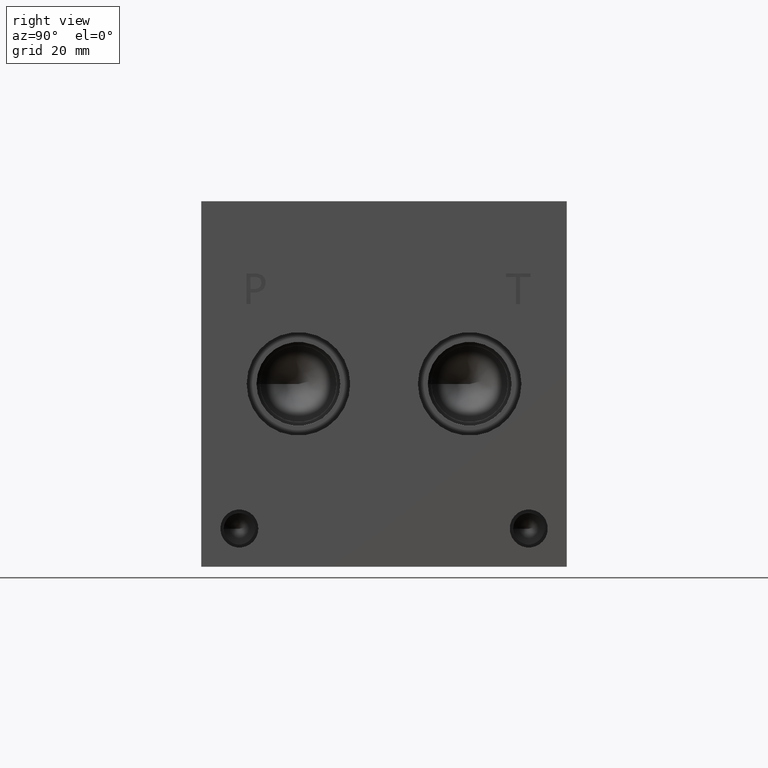
[diagram: clean part render]
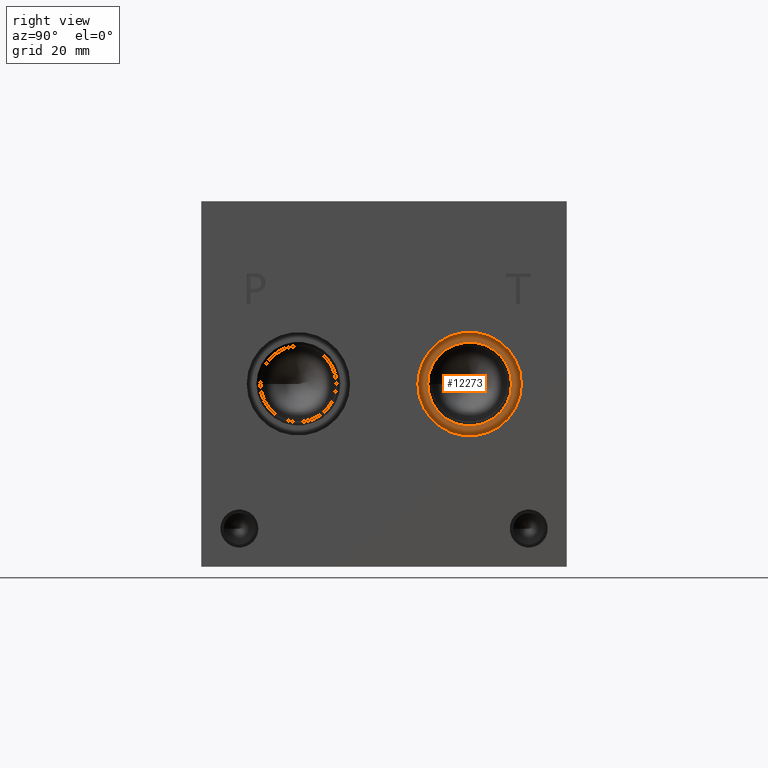
[diagram: same view with one face highlighted and labeled with its STEP entity id]
A machine part, right view. The second image highlights one B-rep face of the part: STEP entity #12273.
In plain terms, the highlighted planar face has unit normal (1, 0, 0).
Its self-contained STEP definition (entity closure, byte-faithful):
#172=CIRCLE('',#12801,10.795);
#173=CIRCLE('',#12802,10.795);
#174=CIRCLE('',#12803,8.7376);
#400=FACE_BOUND('',#2013,.T.);
#767=PLANE('',#12800);
#1315=FACE_OUTER_BOUND('',#2012,.T.);
#2012=EDGE_LOOP('',(#10521,#10522));
#2013=EDGE_LOOP('',(#10523));
#5763=VERTEX_POINT('',#20857);
#5764=VERTEX_POINT('',#20858);
#5765=VERTEX_POINT('',#20861);
#7415=EDGE_CURVE('',#5763,#5764,#172,.T.);
#7416=EDGE_CURVE('',#5764,#5763,#173,.T.);
#7417=EDGE_CURVE('',#5765,#5765,#174,.T.);
#10521=ORIENTED_EDGE('',*,*,#7415,.T.);
#10522=ORIENTED_EDGE('',*,*,#7416,.T.);
#10523=ORIENTED_EDGE('',*,*,#7417,.F.);
#12273=ADVANCED_FACE('',(#1315,#400),#767,.T.);
#12800=AXIS2_PLACEMENT_3D('',#20856,#14922,#14923);
#12801=AXIS2_PLACEMENT_3D('',#20859,#14924,#14925);
#12802=AXIS2_PLACEMENT_3D('',#20860,#14926,#14927);
#12803=AXIS2_PLACEMENT_3D('',#20862,#14928,#14929);
#14922=DIRECTION('center_axis',(1.,0.,0.));
#14923=DIRECTION('ref_axis',(0.,1.,0.));
#14924=DIRECTION('center_axis',(1.,0.,0.));
#14925=DIRECTION('ref_axis',(0.,1.,0.));
#14926=DIRECTION('center_axis',(1.,0.,0.));
#14927=DIRECTION('ref_axis',(0.,1.,0.));
#14928=DIRECTION('center_axis',(1.,0.,0.));
#14929=DIRECTION('ref_axis',(0.,1.,0.));
#20856=CARTESIAN_POINT('Origin',(92.583,55.9562,38.1));
#20857=CARTESIAN_POINT('',(92.583,66.7512,38.1));
#20858=CARTESIAN_POINT('',(92.583,45.1612,38.1));
#20859=CARTESIAN_POINT('Origin',(92.583,55.9562,38.1));
#20860=CARTESIAN_POINT('Origin',(92.583,55.9562,38.1));
#20861=CARTESIAN_POINT('',(92.583,47.2186,38.1));
#20862=CARTESIAN_POINT('Origin',(92.583,55.9562,38.1));